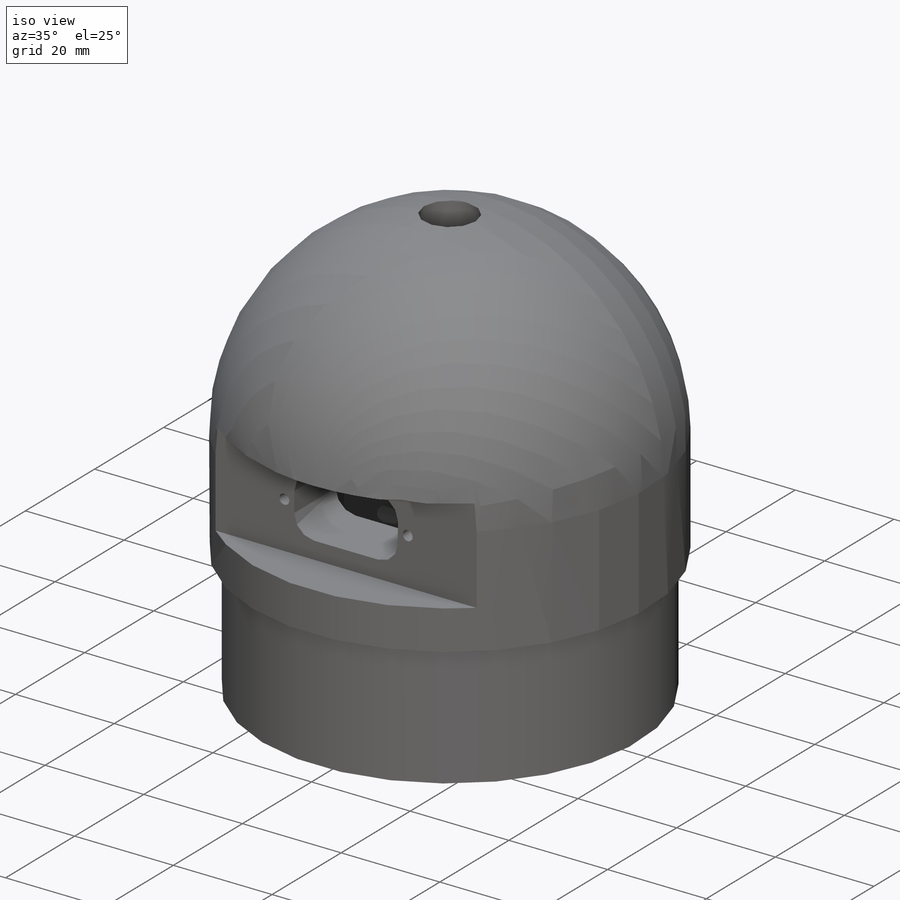
[diagram: iso view]
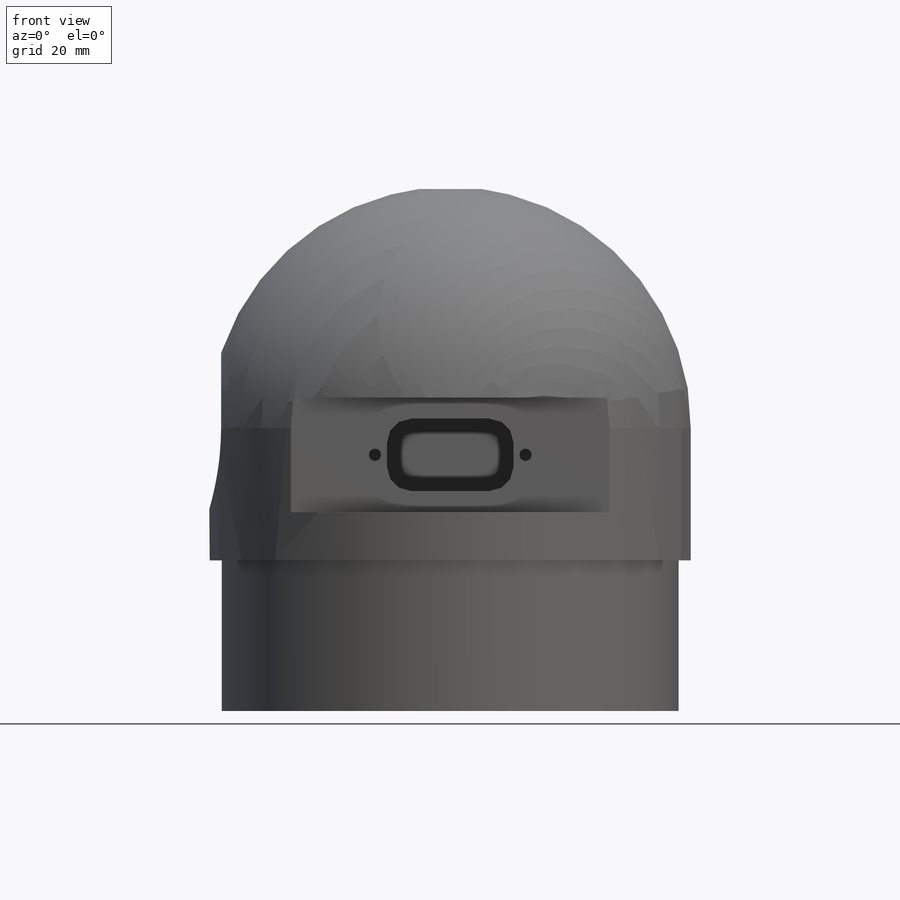
[diagram: front view]
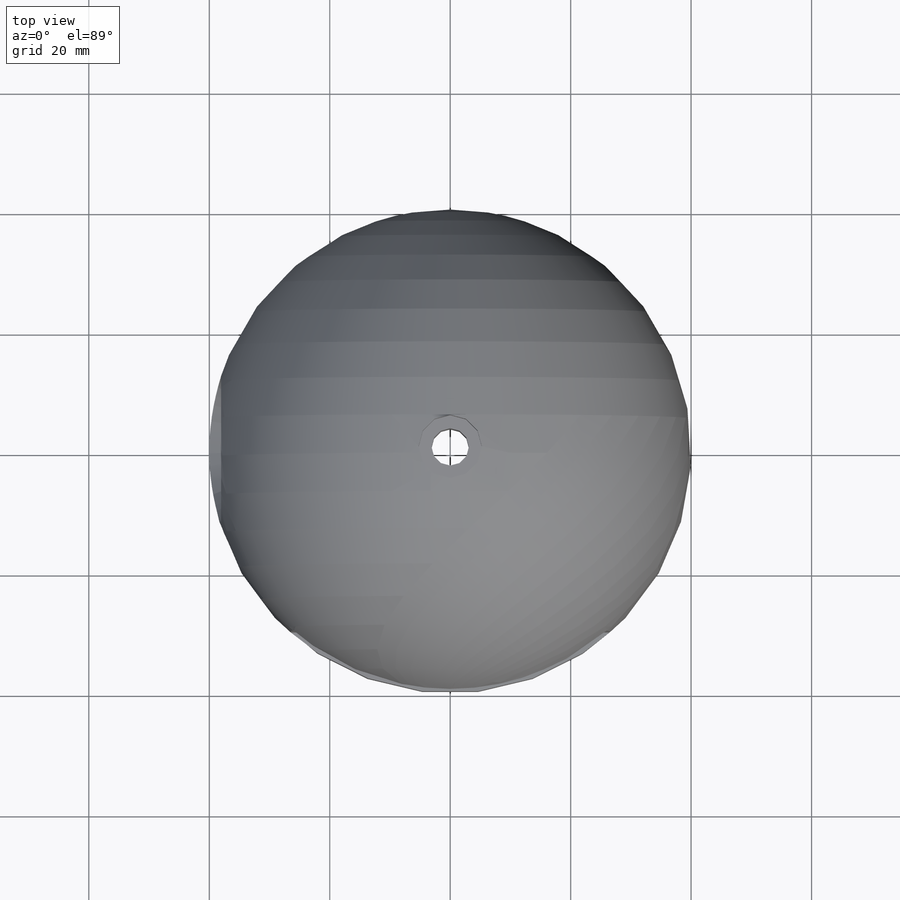
[diagram: top view]
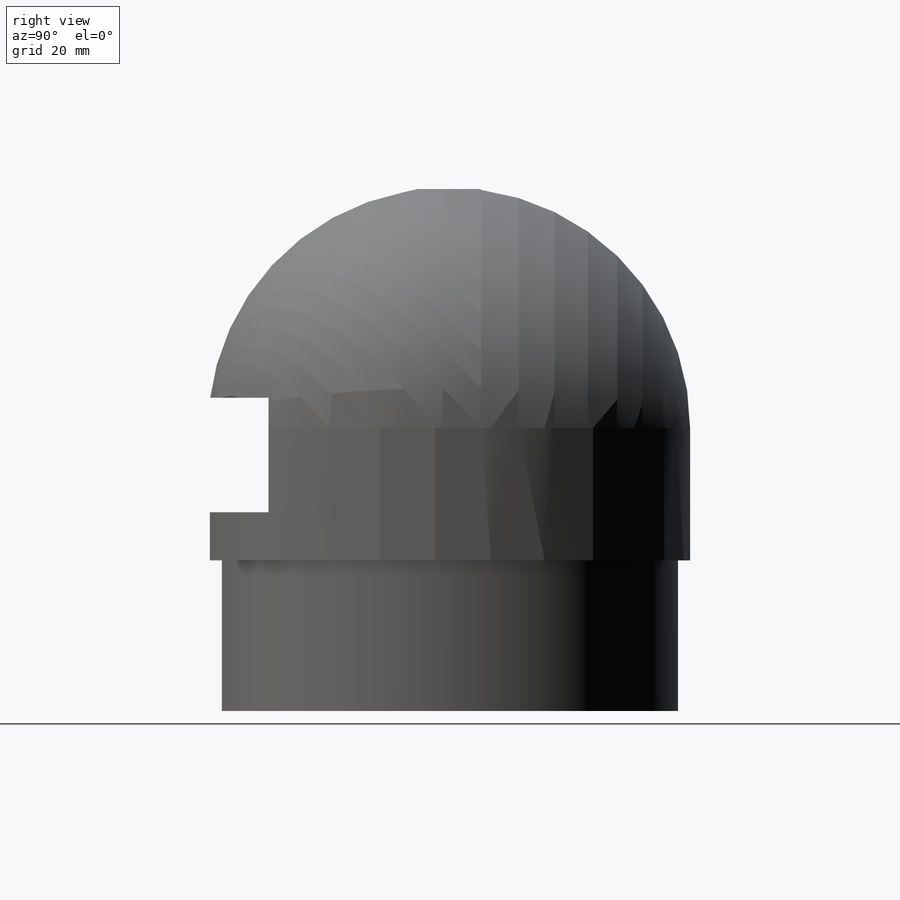
[diagram: right view]
SOLIDWORKS PART (.sldprt)
format: sldprt  version: not decoded by parser v0  size: 379,904 bytes
history: native  units: mm
features: sketch x12, cut_extrude x6, plane x4, thread x3, hole x2, material x1, extrude x1, fillet x1, cut_revolve x1 (+8 scaffold rows collapsed)
feature tree (39):
  scaffold x8  (default folders/planes/origin — collapsed)
  material  "PE haute densité"
  plane  "Plan de face"
  plane  "Plan de dessus"
  plane  "Plan de droite"
  sketch  "Esquisse1"  dims[D1=80.0mm]
  extrude  "Boss.-Extru.1"  Depth=87mm
  fillet  "Congé1"  Radius=40mm
  sketch  "Esquisse2"  dims[D1=2.0mm]
  cut_extrude  "Enlèv. mat.-Extru.1"  Depth=25mm
  sketch  "Esquisse3"  dims[D3=18.0mm D1=33.0mm D2=19.0mm]
  cut_extrude  "Enlèv. mat.-Extru.2"  Depth=10mm
  sketch  "Esquisse4"  dims[c1.D5=4.0mm c1.D1=12.0mm c1.D2=10.5mm c1.D3=10.5mm c1.D4=13.0mm c2.D1=6.5mm c2.D2=6.5mm c2.D3=11.1mm c2.D4=11.1mm c2.D6=12.5mm c2.D7=12.5mm c2.D8=12.5mm]
  cut_extrude  "Enlèv. mat.-Extru.3"  Depth=20mm
  sketch  "Esquisse5"  dims[c1.D1=~23.09413mm c1.D2=31.5mm c1.D3=2.35mm c2.D2=2.0mm c2.D3=8.0mm c2.D1=15.0mm c3.D2=52.0mm c3.D3=12.0mm]
  cut_extrude  "Enlèv. mat.-Extru.4"  Depth=68mm
  sketch  "Esquisse6"  dims[D1=6.2mm]
  cut_extrude  "Enlèv. mat.-Extru.5"  [1 undecoded]
  plane  "Plan1"  Offset=87mm
  sketch  "Esquisse8"  dims[D1=5.2mm]
  cut_extrude  "Enlèv. mat.-Extru.6"  Depth=6mm
  sketch  "Esquisse11"  dims[c1.D2=~3.867491mm c1.D3=~17.332002mm c2.D2=6.4mm c2.D1=6.0mm c3.D1=~115.226471deg c4.D1=18.0mm c5.D1=30.0deg c5.D2=6.0mm c6.D1=6.0mm c6.D2=12.0mm]
  cut_revolve  "Enlèvement de matière-Révolution1"  Angle=360deg
  hole  "Trou taraudé M2.51"  Diameter=2.05mm Depth=12mm
  sketch  "Esquisse21"
  sketch  "Esquisse20"  dims[hole-wizard template sketch: 59 standard entries collapsed; hole parameters kept: c18.Diamètre du trou pour taraudage jusqu'au prochain=2.05mm c18.Profondeur du trou pour taraudage jusqu'au prochain=12.0mm]
  thread  "Filetage de perçage1"  Diameter=2.5mm  [1 undecoded]
  thread  "Filetage de perçage2"  Diameter=2.5mm  [1 undecoded]
  hole  "Trou taraudé M51"  Diameter=4.2mm Depth=18.327043mm
  sketch  "Esquisse23"
  sketch  "Esquisse22"  dims[hole-wizard template sketch: 60 standard entries collapsed; hole parameters kept: c18.Profondeur du trou pour taraudage jusqu'au prochain=~18.327043mm]
  thread  "Filetage de perçage3"  Diameter=5mm  [1 undecoded]
decode coverage: 23 of 26 modeling features carry decoded parameters
note: ~ marks probable driven/reference dimensions
note: 4 parameter values undecoded
note: suppression state not decoded; provenance and decode notes live in map.json
